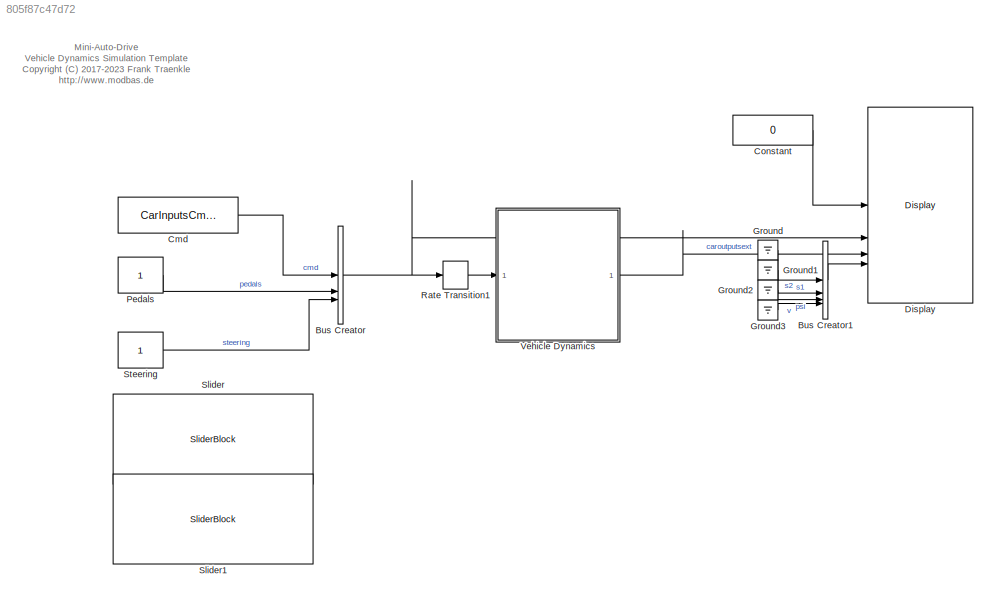
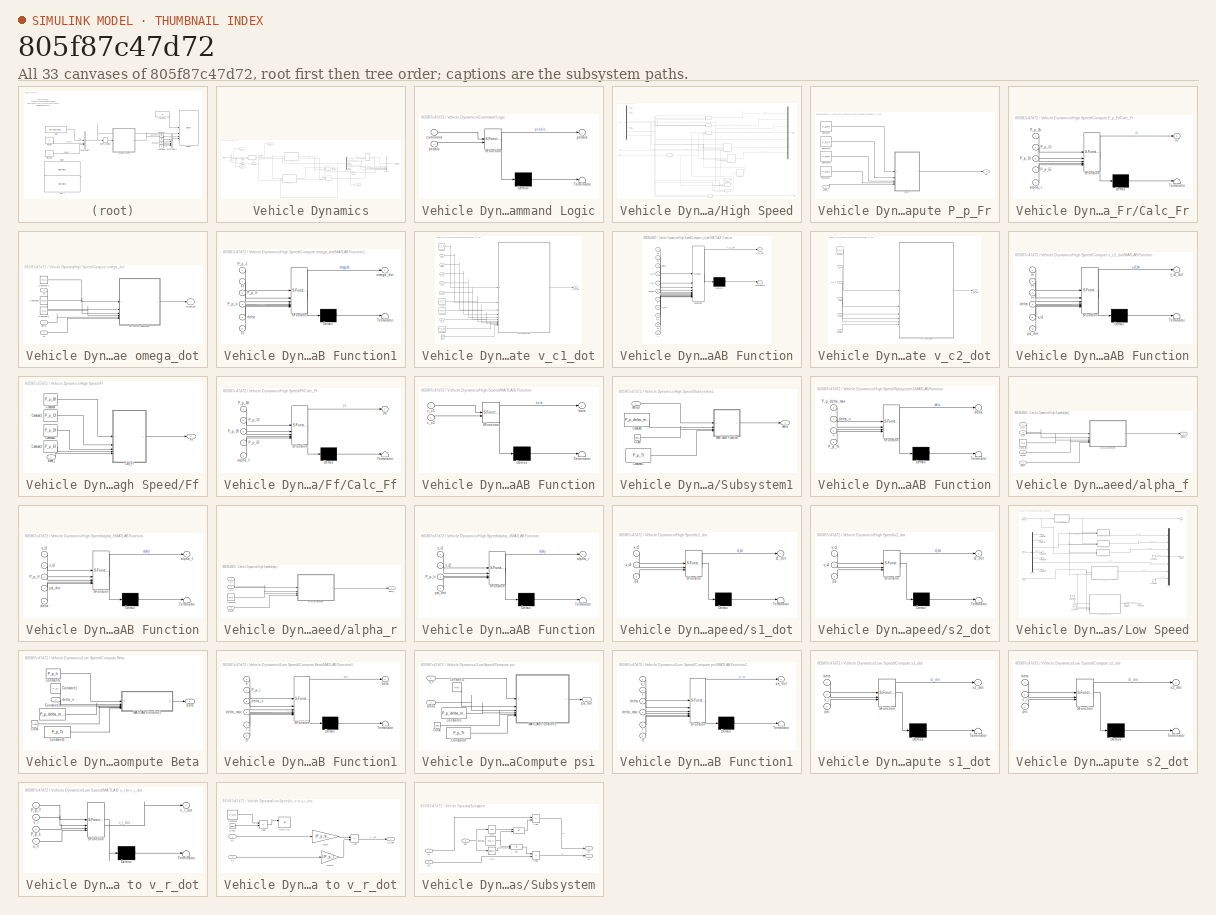
[diagram: thumbnail index - all 33 canvases of the model, root first then tree order]
MODEL slx_805f87c47d72
KIND model
CONFIG AbsTol = auto
CONFIG EnableMultiTasking = off
CONFIG FixedStep = P_sim_dt
CONFIG InitFcn = s6_data;
CONFIG MaxStep = auto
CONFIG MinStep = auto
CONFIG RelTol = 1e-3
CONFIG SampleTimeConstraint = Unconstrained
CONFIG SolverName = ode4
CONFIG StartTime = 0.0
CONFIG StopTime = inf
BLOCK [BusCreator] Bus Creator
  DisplayOption = bar
  InheritFromInputs = on
  Inputs = 3
BLOCK [BusCreator] Bus Creator1
  DisplayOption = bar
  InheritFromInputs = on
  Inputs = 4
BLOCK [Constant] Cmd
  SampleTime = -1
  Value = CarInputsCmdForward
BLOCK [Constant] Constant
  Value = 0
BLOCK [Reference] Display  REF=mad_lib_template/Display  (lib defined in slx_e896f93816e2)
  SourceBlock = mad_lib_template/Display
  SourceType = SubSystem
BLOCK [Ground] Ground
BLOCK [Ground] Ground1
BLOCK [Ground] Ground2
BLOCK [Ground] Ground3
BLOCK [Constant] Pedals
  SampleTime = -1
BLOCK [RateTransition] Rate Transition1
BLOCK [SliderBlock] Slider
  ScaleMax = 1
  ScaleMin = -1
BLOCK [SliderBlock] Slider1
  LabelPosition = Bottom
  ScaleMax = 1
  ScaleMin = -1
BLOCK [Constant] Steering
  SampleTime = -1
BLOCK [SubSystem] Vehicle Dynamics
BLOCK [BusCreator] Vehicle Dynamics/Bus Creator1
  DisplayOption = bar
  InheritFromInputs = on
  Inputs = 7
  OutDataTypeStr = Bus: CAROUTPUTSEXT
BLOCK [BusSelector] Vehicle Dynamics/Bus Selector
  OutputSignals = cmd,pedals,steering
BLOCK [SubSystem] Vehicle Dynamics/Command Logic
  ErrorFcn = Stateflow.Translate.translate
  LibrarySourceBlock = simulink/User-Defined\nFunctions/MATLAB Function
  PermitHierarchicalResolution = ExplicitOnly
  SFBlockType = MATLAB Function
  TreatAsAtomicUnit = on
BLOCK [Demux] Vehicle Dynamics/Command Logic/ Demux 
  Outputs = 1
BLOCK [S-Function] Vehicle Dynamics/Command Logic/ SFunction 
  EnableBusSupport = on
  FunctionName = sf_sfun
  PortCounts = [2 2]
  SFcnIsStateOwnerBlock = off
  SFunctionDeploymentMode = off
  Tag = Stateflow S-Function 2
BLOCK [Terminator] Vehicle Dynamics/Command Logic/ Terminator 
BLOCK [Inport] Vehicle Dynamics/Command Logic/command
BLOCK [Outport] Vehicle Dynamics/Command Logic/pedals
BLOCK [Inport] Vehicle Dynamics/Command Logic/pedals 
  Port = 2
BLOCK [Demux] Vehicle Dynamics/Demux
  Outputs = 7
BLOCK [Display] Vehicle Dynamics/Display
  Decimation = 1
BLOCK [Display] Vehicle Dynamics/Display2
  Decimation = 1
BLOCK [Display] Vehicle Dynamics/Display3
  Decimation = 1
BLOCK [SubSystem] Vehicle Dynamics/High Speed
BLOCK [SubSystem] Vehicle Dynamics/High Speed/Compute P_p_Fr
BLOCK [SubSystem] Vehicle Dynamics/High Speed/Compute P_p_Fr/Calc_Fr
  ErrorFcn = Stateflow.Translate.translate
  LibrarySourceBlock = simulink/User-Defined\nFunctions/MATLAB Function
  PermitHierarchicalResolution = ExplicitOnly
  SFBlockType = MATLAB Function
  TreatAsAtomicUnit = on
BLOCK [Demux] Vehicle Dynamics/High Speed/Compute P_p_Fr/Calc_Fr/ Demux 
  Outputs = 1
BLOCK [S-Function] Vehicle Dynamics/High Speed/Compute P_p_Fr/Calc_Fr/ SFunction 
  EnableBusSupport = on
  FunctionName = sf_sfun
  PortCounts = [5 2]
  SFcnIsStateOwnerBlock = off
  SFunctionDeploymentMode = off
  Tag = Stateflow S-Function 13
BLOCK [Terminator] Vehicle Dynamics/High Speed/Compute P_p_Fr/Calc_Fr/ Terminator 
BLOCK [Outport] Vehicle Dynamics/High Speed/Compute P_p_Fr/Calc_Fr/Fr
BLOCK [Inport] Vehicle Dynamics/High Speed/Compute P_p_Fr/Calc_Fr/P_p_Br
BLOCK [Inport] Vehicle Dynamics/High Speed/Compute P_p_Fr/Calc_Fr/P_p_Cr
  Port = 2
BLOCK [Inport] Vehicle Dynamics/High Speed/Compute P_p_Fr/Calc_Fr/P_p_Dr
  Port = 3
BLOCK [Inport] Vehicle Dynamics/High Speed/Compute P_p_Fr/Calc_Fr/P_p_Er
  Port = 4
BLOCK [Inport] Vehicle Dynamics/High Speed/Compute P_p_Fr/Calc_Fr/alpha_r
  Port = 5
BLOCK [Constant] Vehicle Dynamics/High Speed/Compute P_p_Fr/Constant
  Value = P_p_Br
BLOCK [Constant] Vehicle Dynamics/High Speed/Compute P_p_Fr/Constant1
  Value = P_p_Cr
BLOCK [Constant] Vehicle Dynamics/High Speed/Compute P_p_Fr/Constant2
  Value = P_p_Dr
BLOCK [Constant] Vehicle Dynamics/High Speed/Compute P_p_Fr/Constant3
  Value = P_p_Er
BLOCK [Outport] Vehicle Dynamics/High Speed/Compute P_p_Fr/Fr
BLOCK [Inport] Vehicle Dynamics/High Speed/Compute P_p_Fr/aplha_r
BLOCK [SubSystem] Vehicle Dynamics/High Speed/Compute omega_dot
BLOCK [Constant] Vehicle Dynamics/High Speed/Compute omega_dot/Constant
  Value = P_p_lf
BLOCK [Constant] Vehicle Dynamics/High Speed/Compute omega_dot/Constant1
  Value = P_p_J
BLOCK [Constant] Vehicle Dynamics/High Speed/Compute omega_dot/Constant2
  Value = P_p_lr
BLOCK [Inport] Vehicle Dynamics/High Speed/Compute omega_dot/Ff
BLOCK [Inport] Vehicle Dynamics/High Speed/Compute omega_dot/Fr
  Port = 2
BLOCK [SubSystem] Vehicle Dynamics/High Speed/Compute omega_dot/MATLAB Function1
  ErrorFcn = Stateflow.Translate.translate
  LibrarySourceBlock = simulink/User-Defined\nFunctions/MATLAB Function
  PermitHierarchicalResolution = ExplicitOnly
  SFBlockType = MATLAB Function
  TreatAsAtomicUnit = on
BLOCK [Demux] Vehicle Dynamics/High Speed/Compute omega_dot/MATLAB Function1/ Demux 
  Outputs = 1
BLOCK [S-Function] Vehicle Dynamics/High Speed/Compute omega_dot/MATLAB Function1/ SFunction 
  EnableBusSupport = on
  FunctionName = sf_sfun
  PortCounts = [6 2]
  SFcnIsStateOwnerBlock = off
  SFunctionDeploymentMode = off
  Tag = Stateflow S-Function 4
BLOCK [Terminator] Vehicle Dynamics/High Speed/Compute omega_dot/MATLAB Function1/ Terminator 
BLOCK [Inport] Vehicle Dynamics/High Speed/Compute omega_dot/MATLAB Function1/Ff
  Port = 2
BLOCK [Inport] Vehicle Dynamics/High Speed/Compute omega_dot/MATLAB Function1/Fr
  Port = 6
BLOCK [Inport] Vehicle Dynamics/High Speed/Compute omega_dot/MATLAB Function1/P_p_J
BLOCK [Inport] Vehicle Dynamics/High Speed/Compute omega_dot/MATLAB Function1/P_p_lf
  Port = 3
BLOCK [Inport] Vehicle Dynamics/High Speed/Compute omega_dot/MATLAB Function1/P_p_lr
  Port = 4
BLOCK [Inport] Vehicle Dynamics/High Speed/Compute omega_dot/MATLAB Function1/delta
  Port = 5
BLOCK [Outport] Vehicle Dynamics/High Speed/Compute omega_dot/MATLAB Function1/omega_dot
BLOCK [Inport] Vehicle Dynamics/High Speed/Compute omega_dot/delta
  Port = 3
BLOCK [Outport] Vehicle Dynamics/High Speed/Compute omega_dot/omega_dot
BLOCK [SubSystem] Vehicle Dynamics/High Speed/Compute v_c1_dot
BLOCK [Clock] Vehicle Dynamics/High Speed/Compute v_c1_dot/Clock
BLOCK [Constant] Vehicle Dynamics/High Speed/Compute v_c1_dot/Constant
  Value = P_p_m
BLOCK [Constant] Vehicle Dynamics/High Speed/Compute v_c1_dot/Constant1
  Value = P_p_T
BLOCK [Constant] Vehicle Dynamics/High Speed/Compute v_c1_dot/Constant2
  Value = P_p_k
BLOCK [Constant] Vehicle Dynamics/High Speed/Compute v_c1_dot/Constant3
  Value = P_p_Tt
BLOCK [Inport] Vehicle Dynamics/High Speed/Compute v_c1_dot/Ff
  Port = 6
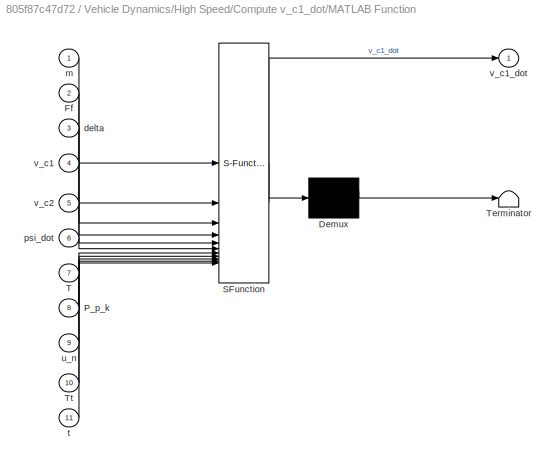
BLOCK [SubSystem] Vehicle Dynamics/High Speed/Compute v_c1_dot/MATLAB Function
  ErrorFcn = Stateflow.Translate.translate
  LibrarySourceBlock = simulink/User-Defined\nFunctions/MATLAB Function
  PermitHierarchicalResolution = ExplicitOnly
  SFBlockType = MATLAB Function
  TreatAsAtomicUnit = on
BLOCK [Demux] Vehicle Dynamics/High Speed/Compute v_c1_dot/MATLAB Function/ Demux 
  Outputs = 1
BLOCK [S-Function] Vehicle Dynamics/High Speed/Compute v_c1_dot/MATLAB Function/ SFunction 
  EnableBusSupport = on
  FunctionName = sf_sfun
  PortCounts = [11 2]
  SFcnIsStateOwnerBlock = off
  SFunctionDeploymentMode = off
  Tag = Stateflow S-Function 11
BLOCK [Terminator] Vehicle Dynamics/High Speed/Compute v_c1_dot/MATLAB Function/ Terminator 
BLOCK [Inport] Vehicle Dynamics/High Speed/Compute v_c1_dot/MATLAB Function/Ff
  Port = 2
BLOCK [Inport] Vehicle Dynamics/High Speed/Compute v_c1_dot/MATLAB Function/P_p_k
  Port = 8
BLOCK [Inport] Vehicle Dynamics/High Speed/Compute v_c1_dot/MATLAB Function/T
  Port = 7
BLOCK [Inport] Vehicle Dynamics/High Speed/Compute v_c1_dot/MATLAB Function/Tt
  Port = 10
BLOCK [Inport] Vehicle Dynamics/High Speed/Compute v_c1_dot/MATLAB Function/delta
  Port = 3
BLOCK [Inport] Vehicle Dynamics/High Speed/Compute v_c1_dot/MATLAB Function/m
BLOCK [Inport] Vehicle Dynamics/High Speed/Compute v_c1_dot/MATLAB Function/psi_dot
  Port = 6
BLOCK [Inport] Vehicle Dynamics/High Speed/Compute v_c1_dot/MATLAB Function/t
  Port = 11
BLOCK [Inport] Vehicle Dynamics/High Speed/Compute v_c1_dot/MATLAB Function/u_n
  Port = 9
BLOCK [Inport] Vehicle Dynamics/High Speed/Compute v_c1_dot/MATLAB Function/v_c1
  Port = 4
BLOCK [Outport] Vehicle Dynamics/High Speed/Compute v_c1_dot/MATLAB Function/v_c1_dot
BLOCK [Inport] Vehicle Dynamics/High Speed/Compute v_c1_dot/MATLAB Function/v_c2
  Port = 5
BLOCK [Inport] Vehicle Dynamics/High Speed/Compute v_c1_dot/delta
BLOCK [Inport] Vehicle Dynamics/High Speed/Compute v_c1_dot/psi_dot
  Port = 4
BLOCK [Inport] Vehicle Dynamics/High Speed/Compute v_c1_dot/u_n
  Port = 5
BLOCK [Inport] Vehicle Dynamics/High Speed/Compute v_c1_dot/v_c1
  Port = 2
BLOCK [Outport] Vehicle Dynamics/High Speed/Compute v_c1_dot/v_c1_dot
BLOCK [Inport] Vehicle Dynamics/High Speed/Compute v_c1_dot/v_c2
  Port = 3
BLOCK [SubSystem] Vehicle Dynamics/High Speed/Compute v_c2_dot
BLOCK [Constant] Vehicle Dynamics/High Speed/Compute v_c2_dot/Constant
  Value = P_p_m
BLOCK [Inport] Vehicle Dynamics/High Speed/Compute v_c2_dot/Ff
  Port = 4
BLOCK [SubSystem] Vehicle Dynamics/High Speed/Compute v_c2_dot/MATLAB Function
  ErrorFcn = Stateflow.Translate.translate
  LibrarySourceBlock = simulink/User-Defined\nFunctions/MATLAB Function
  PermitHierarchicalResolution = ExplicitOnly
  SFBlockType = MATLAB Function
  TreatAsAtomicUnit = on
BLOCK [Demux] Vehicle Dynamics/High Speed/Compute v_c2_dot/MATLAB Function/ Demux 
  Outputs = 1
BLOCK [S-Function] Vehicle Dynamics/High Speed/Compute v_c2_dot/MATLAB Function/ SFunction 
  EnableBusSupport = on
  FunctionName = sf_sfun
  PortCounts = [6 2]
  SFcnIsStateOwnerBlock = off
  SFunctionDeploymentMode = off
  Tag = Stateflow S-Function 12
BLOCK [Terminator] Vehicle Dynamics/High Speed/Compute v_c2_dot/MATLAB Function/ Terminator 
BLOCK [Inport] Vehicle Dynamics/High Speed/Compute v_c2_dot/MATLAB Function/Ff
  Port = 2
BLOCK [Inport] Vehicle Dynamics/High Speed/Compute v_c2_dot/MATLAB Function/Fr
  Port = 3
BLOCK [Inport] Vehicle Dynamics/High Speed/Compute v_c2_dot/MATLAB Function/delta
  Port = 4
BLOCK [Inport] Vehicle Dynamics/High Speed/Compute v_c2_dot/MATLAB Function/m
BLOCK [Inport] Vehicle Dynamics/High Speed/Compute v_c2_dot/MATLAB Function/psi_dot
  Port = 6
BLOCK [Inport] Vehicle Dynamics/High Speed/Compute v_c2_dot/MATLAB Function/v_c1
  Port = 5
BLOCK [Outport] Vehicle Dynamics/High Speed/Compute v_c2_dot/MATLAB Function/v_c2_dot
BLOCK [Inport] Vehicle Dynamics/High Speed/Compute v_c2_dot/P_p_Fr
  Port = 5
BLOCK [Inport] Vehicle Dynamics/High Speed/Compute v_c2_dot/delta
BLOCK [Inport] Vehicle Dynamics/High Speed/Compute v_c2_dot/psi_dot
  Port = 3
BLOCK [Inport] Vehicle Dynamics/High Speed/Compute v_c2_dot/v_c1
  Port = 2
BLOCK [Outport] Vehicle Dynamics/High Speed/Compute v_c2_dot/v_c2_dot
BLOCK [Demux] Vehicle Dynamics/High Speed/Demux
  Outputs = 7
BLOCK [SubSystem] Vehicle Dynamics/High Speed/Ff
BLOCK [SubSystem] Vehicle Dynamics/High Speed/Ff/Calc_Ff
  ErrorFcn = Stateflow.Translate.translate
  LibrarySourceBlock = simulink/User-Defined\nFunctions/MATLAB Function
  PermitHierarchicalResolution = ExplicitOnly
  SFBlockType = MATLAB Function
  TreatAsAtomicUnit = on
BLOCK [Demux] Vehicle Dynamics/High Speed/Ff/Calc_Ff/ Demux 
  Outputs = 1
BLOCK [S-Function] Vehicle Dynamics/High Speed/Ff/Calc_Ff/ SFunction 
  EnableBusSupport = on
  FunctionName = sf_sfun
  PortCounts = [5 2]
  SFcnIsStateOwnerBlock = off
  SFunctionDeploymentMode = off
  Tag = Stateflow S-Function 14
BLOCK [Terminator] Vehicle Dynamics/High Speed/Ff/Calc_Ff/ Terminator 
BLOCK [Outport] Vehicle Dynamics/High Speed/Ff/Calc_Ff/Ff
BLOCK [Inport] Vehicle Dynamics/High Speed/Ff/Calc_Ff/P_p_Bf
BLOCK [Inport] Vehicle Dynamics/High Speed/Ff/Calc_Ff/P_p_Cf
  Port = 2
BLOCK [Inport] Vehicle Dynamics/High Speed/Ff/Calc_Ff/P_p_Df
  Port = 3
BLOCK [Inport] Vehicle Dynamics/High Speed/Ff/Calc_Ff/P_p_Ef
  Port = 4
BLOCK [Inport] Vehicle Dynamics/High Speed/Ff/Calc_Ff/alpha_f
  Port = 5
BLOCK [Constant] Vehicle Dynamics/High Speed/Ff/Constant
  Value = P_p_Bf
BLOCK [Constant] Vehicle Dynamics/High Speed/Ff/Constant1
  Value = P_p_Cf
BLOCK [Constant] Vehicle Dynamics/High Speed/Ff/Constant2
  Value = P_p_Df
BLOCK [Constant] Vehicle Dynamics/High Speed/Ff/Constant3
  Value = P_p_Ef
BLOCK [Outport] Vehicle Dynamics/High Speed/Ff/Ff
BLOCK [Inport] Vehicle Dynamics/High Speed/Ff/alpha_f
BLOCK [SubSystem] Vehicle Dynamics/High Speed/MATLAB Function
  ErrorFcn = Stateflow.Translate.translate
  LibrarySourceBlock = simulink/User-Defined\nFunctions/MATLAB Function
  PermitHierarchicalResolution = ExplicitOnly
  SFBlockType = MATLAB Function
  TreatAsAtomicUnit = on
BLOCK [Demux] Vehicle Dynamics/High Speed/MATLAB Function/ Demux 
  Outputs = 1
BLOCK [S-Function] Vehicle Dynamics/High Speed/MATLAB Function/ SFunction 
  EnableBusSupport = on
  FunctionName = sf_sfun
  PortCounts = [2 2]
  SFcnIsStateOwnerBlock = off
  SFunctionDeploymentMode = off
  Tag = Stateflow S-Function 3
BLOCK [Terminator] Vehicle Dynamics/High Speed/MATLAB Function/ Terminator 
BLOCK [Outport] Vehicle Dynamics/High Speed/MATLAB Function/beta
BLOCK [Inport] Vehicle Dynamics/High Speed/MATLAB Function/v_c1
BLOCK [Inport] Vehicle Dynamics/High Speed/MATLAB Function/v_c2
  Port = 2
BLOCK [Mux] Vehicle Dynamics/High Speed/Mux
  DisplayOption = bar
  Inputs = 7
BLOCK [Outport] Vehicle Dynamics/High Speed/Output
BLOCK [SubSystem] Vehicle Dynamics/High Speed/Subsystem1
BLOCK [Clock] Vehicle Dynamics/High Speed/Subsystem1/Clock
BLOCK [Constant] Vehicle Dynamics/High Speed/Subsystem1/Constant
  Value = P_p_delta_max
BLOCK [Constant] Vehicle Dynamics/High Speed/Subsystem1/Constant1
  Value = P_p_Tt
BLOCK [SubSystem] Vehicle Dynamics/High Speed/Subsystem1/MATLAB Function
  ErrorFcn = Stateflow.Translate.translate
  LibrarySourceBlock = simulink/User-Defined\nFunctions/MATLAB Function
  PermitHierarchicalResolution = ExplicitOnly
  SFBlockType = MATLAB Function
  TreatAsAtomicUnit = on
BLOCK [Demux] Vehicle Dynamics/High Speed/Subsystem1/MATLAB Function/ Demux 
  Outputs = 1
BLOCK [S-Function] Vehicle Dynamics/High Speed/Subsystem1/MATLAB Function/ SFunction 
  EnableBusSupport = on
  FunctionName = sf_sfun
  PortCounts = [4 2]
  SFcnIsStateOwnerBlock = off
  SFunctionDeploymentMode = off
  Tag = Stateflow S-Function 16
BLOCK [Terminator] Vehicle Dynamics/High Speed/Subsystem1/MATLAB Function/ Terminator 
BLOCK [Inport] Vehicle Dynamics/High Speed/Subsystem1/MATLAB Function/P_p_Tt
  Port = 4
BLOCK [Inport] Vehicle Dynamics/High Speed/Subsystem1/MATLAB Function/P_p_delta_max
BLOCK [Outport] Vehicle Dynamics/High Speed/Subsystem1/MATLAB Function/delta
BLOCK [Inport] Vehicle Dynamics/High Speed/Subsystem1/MATLAB Function/delta_n
  Port = 2
BLOCK [Inport] Vehicle Dynamics/High Speed/Subsystem1/MATLAB Function/t
  Port = 3
BLOCK [Outport] Vehicle Dynamics/High Speed/Subsystem1/delta
BLOCK [Inport] Vehicle Dynamics/High Speed/Subsystem1/delta_n
BLOCK [Terminator] Vehicle Dynamics/High Speed/Terminator
BLOCK [Terminator] Vehicle Dynamics/High Speed/Terminator1
BLOCK [Terminator] Vehicle Dynamics/High Speed/Terminator2
BLOCK [SubSystem] Vehicle Dynamics/High Speed/alpha_f
BLOCK [Constant] Vehicle Dynamics/High Speed/alpha_f/Constant
  Value = P_p_lf
BLOCK [SubSystem] Vehicle Dynamics/High Speed/alpha_f/MATLAB Function
  ErrorFcn = Stateflow.Translate.translate
  LibrarySourceBlock = simulink/User-Defined\nFunctions/MATLAB Function
  PermitHierarchicalResolution = ExplicitOnly
  SFBlockType = MATLAB Function
  TreatAsAtomicUnit = on
BLOCK [Demux] Vehicle Dynamics/High Speed/alpha_f/MATLAB Function/ Demux 
  Outputs = 1
BLOCK [S-Function] Vehicle Dynamics/High Speed/alpha_f/MATLAB Function/ SFunction 
  EnableBusSupport = on
  FunctionName = sf_sfun
  PortCounts = [5 2]
  SFcnIsStateOwnerBlock = off
  SFunctionDeploymentMode = off
  Tag = Stateflow S-Function 18
BLOCK [Terminator] Vehicle Dynamics/High Speed/alpha_f/MATLAB Function/ Terminator 
BLOCK [Inport] Vehicle Dynamics/High Speed/alpha_f/MATLAB Function/P_p_lf
  Port = 3
BLOCK [Outport] Vehicle Dynamics/High Speed/alpha_f/MATLAB Function/alpha_f
BLOCK [Inport] Vehicle Dynamics/High Speed/alpha_f/MATLAB Function/delta
  Port = 5
BLOCK [Inport] Vehicle Dynamics/High Speed/alpha_f/MATLAB Function/psi_dot
  Port = 4
BLOCK [Inport] Vehicle Dynamics/High Speed/alpha_f/MATLAB Function/v_c1
BLOCK [Inport] Vehicle Dynamics/High Speed/alpha_f/MATLAB Function/v_c2
  Port = 2
BLOCK [Outport] Vehicle Dynamics/High Speed/alpha_f/alpha_f
BLOCK [Inport] Vehicle Dynamics/High Speed/alpha_f/delta
  Port = 4
BLOCK [Inport] Vehicle Dynamics/High Speed/alpha_f/psi_dot
  Port = 3
BLOCK [Inport] Vehicle Dynamics/High Speed/alpha_f/v_c1
BLOCK [Inport] Vehicle Dynamics/High Speed/alpha_f/v_c2
  Port = 2
BLOCK [SubSystem] Vehicle Dynamics/High Speed/alpha_r
BLOCK [Constant] Vehicle Dynamics/High Speed/alpha_r/Constant
  Value = P_p_lr
BLOCK [SubSystem] Vehicle Dynamics/High Speed/alpha_r/MATLAB Function
  ErrorFcn = Stateflow.Translate.translate
  LibrarySourceBlock = simulink/User-Defined\nFunctions/MATLAB Function
  PermitHierarchicalResolution = ExplicitOnly
  SFBlockType = MATLAB Function
  TreatAsAtomicUnit = on
BLOCK [Demux] Vehicle Dynamics/High Speed/alpha_r/MATLAB Function/ Demux 
  Outputs = 1
BLOCK [S-Function] Vehicle Dynamics/High Speed/alpha_r/MATLAB Function/ SFunction 
  EnableBusSupport = on
  FunctionName = sf_sfun
  PortCounts = [4 2]
  SFcnIsStateOwnerBlock = off
  SFunctionDeploymentMode = off
  Tag = Stateflow S-Function 15
BLOCK [Terminator] Vehicle Dynamics/High Speed/alpha_r/MATLAB Function/ Terminator 
BLOCK [Inport] Vehicle Dynamics/High Speed/alpha_r/MATLAB Function/P_p_lr
  Port = 3
BLOCK [Outport] Vehicle Dynamics/High Speed/alpha_r/MATLAB Function/alpha_r
BLOCK [Inport] Vehicle Dynamics/High Speed/alpha_r/MATLAB Function/psi_dot
  Port = 4
BLOCK [Inport] Vehicle Dynamics/High Speed/alpha_r/MATLAB Function/v_c1
BLOCK [Inport] Vehicle Dynamics/High Speed/alpha_r/MATLAB Function/v_c2
  Port = 2
BLOCK [Outport] Vehicle Dynamics/High Speed/alpha_r/alpha_r
BLOCK [Inport] Vehicle Dynamics/High Speed/alpha_r/psi_dot
  Port = 3
BLOCK [Inport] Vehicle Dynamics/High Speed/alpha_r/v_c1
BLOCK [Inport] Vehicle Dynamics/High Speed/alpha_r/v_c2
  Port = 2
BLOCK [Outport] Vehicle Dynamics/High Speed/beta
  Port = 2
BLOCK [Inport] Vehicle Dynamics/High Speed/delta_n
  Port = 3
BLOCK [SubSystem] Vehicle Dynamics/High Speed/s1_dot
  ErrorFcn = Stateflow.Translate.translate
  LibrarySourceBlock = simulink/User-Defined\nFunctions/MATLAB Function
  PermitHierarchicalResolution = ExplicitOnly
  SFBlockType = MATLAB Function
  TreatAsAtomicUnit = on
BLOCK [Demux] Vehicle Dynamics/High Speed/s1_dot/ Demux 
  Outputs = 1
BLOCK [S-Function] Vehicle Dynamics/High Speed/s1_dot/ SFunction 
  EnableBusSupport = on
  FunctionName = sf_sfun
  PortCounts = [3 2]
  SFcnIsStateOwnerBlock = off
  SFunctionDeploymentMode = off
  Tag = Stateflow S-Function 7
BLOCK [Terminator] Vehicle Dynamics/High Speed/s1_dot/ Terminator 
BLOCK [Inport] Vehicle Dynamics/High Speed/s1_dot/psi
  Port = 3
BLOCK [Outport] Vehicle Dynamics/High Speed/s1_dot/s1_dot
BLOCK [Inport] Vehicle Dynamics/High Speed/s1_dot/v_c1
BLOCK [Inport] Vehicle Dynamics/High Speed/s1_dot/v_c2
  Port = 2
BLOCK [SubSystem] Vehicle Dynamics/High Speed/s2_dot
  ErrorFcn = Stateflow.Translate.translate
  LibrarySourceBlock = simulink/User-Defined\nFunctions/MATLAB Function
  PermitHierarchicalResolution = ExplicitOnly
  SFBlockType = MATLAB Function
  TreatAsAtomicUnit = on
BLOCK [Demux] Vehicle Dynamics/High Speed/s2_dot/ Demux 
  Outputs = 1
BLOCK [S-Function] Vehicle Dynamics/High Speed/s2_dot/ SFunction 
  EnableBusSupport = on
  FunctionName = sf_sfun
  PortCounts = [3 2]
  SFcnIsStateOwnerBlock = off
  SFunctionDeploymentMode = off
  Tag = Stateflow S-Function 6
BLOCK [Terminator] Vehicle Dynamics/High Speed/s2_dot/ Terminator 
BLOCK [Inport] Vehicle Dynamics/High Speed/s2_dot/psi
  Port = 3
BLOCK [Outport] Vehicle Dynamics/High Speed/s2_dot/s2_dot
BLOCK [Inport] Vehicle Dynamics/High Speed/s2_dot/v_c1
BLOCK [Inport] Vehicle Dynamics/High Speed/s2_dot/v_c2
  Port = 2
BLOCK [Inport] Vehicle Dynamics/High Speed/u_n
BLOCK [Inport] Vehicle Dynamics/High Speed/y
  Port = 2
BLOCK [Integrator] Vehicle Dynamics/Integrator2
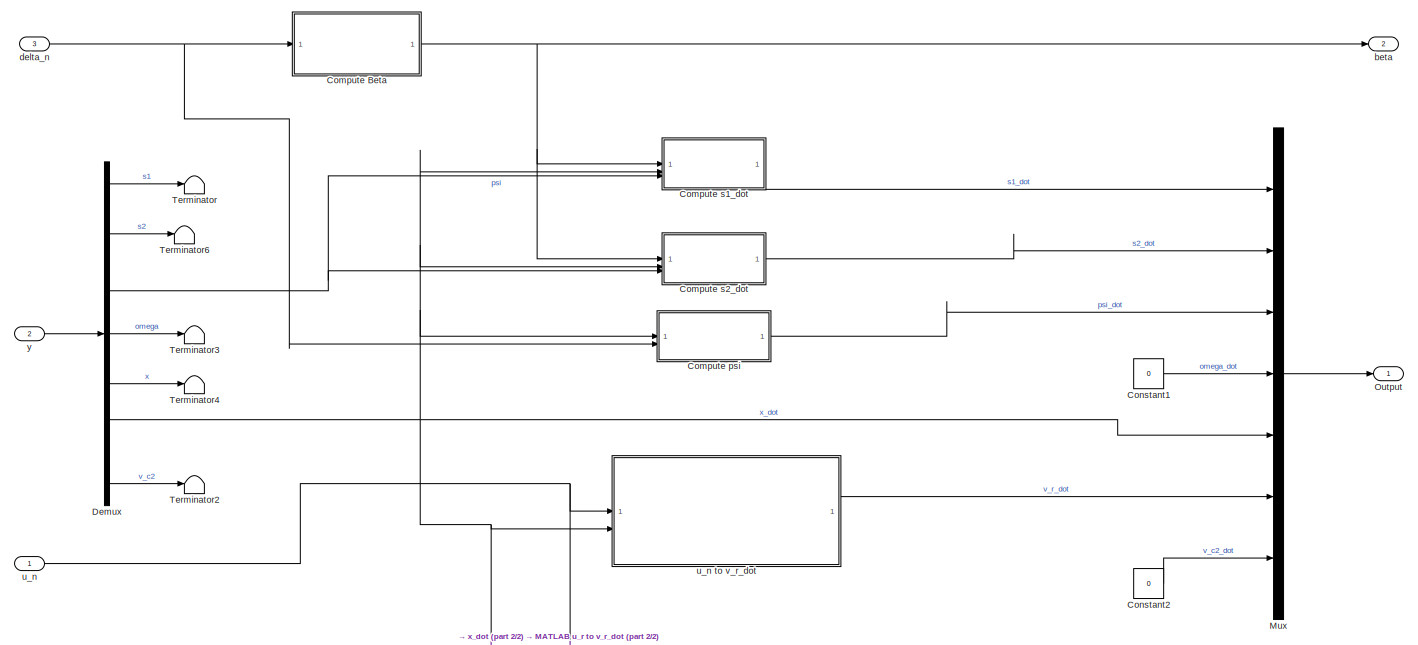
[diagram: Vehicle Dynamics/Low Speed - part 1/2, full width, middle band]
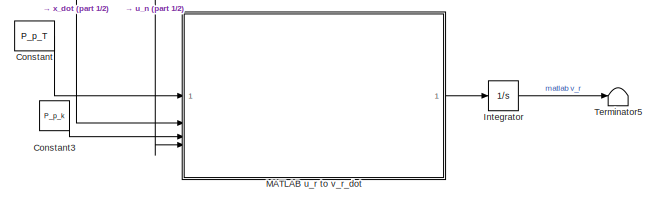
[diagram: Vehicle Dynamics/Low Speed - part 2/2, bottom center region]
BLOCK [SubSystem] Vehicle Dynamics/Low Speed
BLOCK [SubSystem] Vehicle Dynamics/Low Speed/Compute Beta
BLOCK [Clock] Vehicle Dynamics/Low Speed/Compute Beta/Clock
BLOCK [Constant] Vehicle Dynamics/Low Speed/Compute Beta/Constant1
  Value = P_p_l
BLOCK [Constant] Vehicle Dynamics/Low Speed/Compute Beta/Constant2
  Value = P_p_lr
BLOCK [Constant] Vehicle Dynamics/Low Speed/Compute Beta/Constant3
  Value = P_p_delta_max
BLOCK [Constant] Vehicle Dynamics/Low Speed/Compute Beta/Constant4
  Value = P_p_Tt
BLOCK [SubSystem] Vehicle Dynamics/Low Speed/Compute Beta/MATLAB Function1
  ErrorFcn = Stateflow.Translate.translate
  LibrarySourceBlock = simulink/User-Defined\nFunctions/MATLAB Function
  PermitHierarchicalResolution = ExplicitOnly
  SFBlockType = MATLAB Function
  TreatAsAtomicUnit = on
BLOCK [Demux] Vehicle Dynamics/Low Speed/Compute Beta/MATLAB Function1/ Demux 
  Outputs = 1
BLOCK [S-Function] Vehicle Dynamics/Low Speed/Compute Beta/MATLAB Function1/ SFunction 
  EnableBusSupport = on
  FunctionName = sf_sfun
  PortCounts = [6 2]
  SFcnIsStateOwnerBlock = off
  SFunctionDeploymentMode = off
  Tag = Stateflow S-Function 5
BLOCK [Terminator] Vehicle Dynamics/Low Speed/Compute Beta/MATLAB Function1/ Terminator 
BLOCK [Inport] Vehicle Dynamics/Low Speed/Compute Beta/MATLAB Function1/P_p_l
  Port = 2
BLOCK [Inport] Vehicle Dynamics/Low Speed/Compute Beta/MATLAB Function1/Tt
  Port = 6
BLOCK [Inport] Vehicle Dynamics/Low Speed/Compute Beta/MATLAB Function1/a
BLOCK [Outport] Vehicle Dynamics/Low Speed/Compute Beta/MATLAB Function1/beta
BLOCK [Inport] Vehicle Dynamics/Low Speed/Compute Beta/MATLAB Function1/delta_max
  Port = 4
BLOCK [Inport] Vehicle Dynamics/Low Speed/Compute Beta/MATLAB Function1/delta_n
  Port = 3
BLOCK [Inport] Vehicle Dynamics/Low Speed/Compute Beta/MATLAB Function1/t
  Port = 5
BLOCK [Outport] Vehicle Dynamics/Low Speed/Compute Beta/beta
BLOCK [Inport] Vehicle Dynamics/Low Speed/Compute Beta/delta_n
BLOCK [SubSystem] Vehicle Dynamics/Low Speed/Compute psi
BLOCK [Clock] Vehicle Dynamics/Low Speed/Compute psi/Clock
BLOCK [Constant] Vehicle Dynamics/Low Speed/Compute psi/Constant1
  Value = P_p_l
BLOCK [Constant] Vehicle Dynamics/Low Speed/Compute psi/Constant3
  Value = P_p_delta_max
BLOCK [Constant] Vehicle Dynamics/Low Speed/Compute psi/Constant4
  Value = P_p_Tt
BLOCK [SubSystem] Vehicle Dynamics/Low Speed/Compute psi/MATLAB Function1
  ErrorFcn = Stateflow.Translate.translate
  LibrarySourceBlock = simulink/User-Defined\nFunctions/MATLAB Function
  PermitHierarchicalResolution = ExplicitOnly
  SFBlockType = MATLAB Function
  TreatAsAtomicUnit = on
BLOCK [Demux] Vehicle Dynamics/Low Speed/Compute psi/MATLAB Function1/ Demux 
  Outputs = 1
BLOCK [S-Function] Vehicle Dynamics/Low Speed/Compute psi/MATLAB Function1/ SFunction 
  EnableBusSupport = on
  FunctionName = sf_sfun
  PortCounts = [6 2]
  SFcnIsStateOwnerBlock = off
  SFunctionDeploymentMode = off
  Tag = Stateflow S-Function 10
BLOCK [Terminator] Vehicle Dynamics/Low Speed/Compute psi/MATLAB Function1/ Terminator 
BLOCK [Inport] Vehicle Dynamics/Low Speed/Compute psi/MATLAB Function1/Tt
  Port = 6
BLOCK [Inport] Vehicle Dynamics/Low Speed/Compute psi/MATLAB Function1/delta
  Port = 3
BLOCK [Inport] Vehicle Dynamics/Low Speed/Compute psi/MATLAB Function1/delta_max
  Port = 4
BLOCK [Inport] Vehicle Dynamics/Low Speed/Compute psi/MATLAB Function1/l
  Port = 2
BLOCK [Outport] Vehicle Dynamics/Low Speed/Compute psi/MATLAB Function1/psi_dot
BLOCK [Inport] Vehicle Dynamics/Low Speed/Compute psi/MATLAB Function1/t
  Port = 5
BLOCK [Inport] Vehicle Dynamics/Low Speed/Compute psi/MATLAB Function1/v_r
BLOCK [Inport] Vehicle Dynamics/Low Speed/Compute psi/delta
  Port = 2
BLOCK [Outport] Vehicle Dynamics/Low Speed/Compute psi/psi_dot
BLOCK [Inport] Vehicle Dynamics/Low Speed/Compute psi/v_r
BLOCK [SubSystem] Vehicle Dynamics/Low Speed/Compute s1_dot
  ErrorFcn = Stateflow.Translate.translate
  LibrarySourceBlock = simulink/User-Defined\nFunctions/MATLAB Function
  PermitHierarchicalResolution = ExplicitOnly
  SFBlockType = MATLAB Function
  TreatAsAtomicUnit = on
BLOCK [Demux] Vehicle Dynamics/Low Speed/Compute s1_dot/ Demux 
  Outputs = 1
BLOCK [S-Function] Vehicle Dynamics/Low Speed/Compute s1_dot/ SFunction 
  EnableBusSupport = on
  FunctionName = sf_sfun
  PortCounts = [3 2]
  SFcnIsStateOwnerBlock = off
  SFunctionDeploymentMode = off
  Tag = Stateflow S-Function 9
BLOCK [Terminator] Vehicle Dynamics/Low Speed/Compute s1_dot/ Terminator 
BLOCK [Inport] Vehicle Dynamics/Low Speed/Compute s1_dot/beta
BLOCK [Inport] Vehicle Dynamics/Low Speed/Compute s1_dot/psi
  Port = 3
BLOCK [Outport] Vehicle Dynamics/Low Speed/Compute s1_dot/s1_dot
BLOCK [Inport] Vehicle Dynamics/Low Speed/Compute s1_dot/v_r
  Port = 2
BLOCK [SubSystem] Vehicle Dynamics/Low Speed/Compute s2_dot
  ErrorFcn = Stateflow.Translate.translate
  LibrarySourceBlock = simulink/User-Defined\nFunctions/MATLAB Function
  PermitHierarchicalResolution = ExplicitOnly
  SFBlockType = MATLAB Function
  TreatAsAtomicUnit = on
BLOCK [Demux] Vehicle Dynamics/Low Speed/Compute s2_dot/ Demux 
  Outputs = 1
BLOCK [S-Function] Vehicle Dynamics/Low Speed/Compute s2_dot/ SFunction 
  EnableBusSupport = on
  FunctionName = sf_sfun
  PortCounts = [3 2]
  SFcnIsStateOwnerBlock = off
  SFunctionDeploymentMode = off
  Tag = Stateflow S-Function 8
BLOCK [Terminator] Vehicle Dynamics/Low Speed/Compute s2_dot/ Terminator 
BLOCK [Inport] Vehicle Dynamics/Low Speed/Compute s2_dot/beta
BLOCK [Inport] Vehicle Dynamics/Low Speed/Compute s2_dot/psi
  Port = 3
BLOCK [Outport] Vehicle Dynamics/Low Speed/Compute s2_dot/s2_dot
BLOCK [Inport] Vehicle Dynamics/Low Speed/Compute s2_dot/v_r
  Port = 2
BLOCK [Constant] Vehicle Dynamics/Low Speed/Constant
  Value = P_p_T
BLOCK [Constant] Vehicle Dynamics/Low Speed/Constant1
  Value = 0
BLOCK [Constant] Vehicle Dynamics/Low Speed/Constant2
  Value = 0
BLOCK [Constant] Vehicle Dynamics/Low Speed/Constant3
  Value = P_p_k
BLOCK [Demux] Vehicle Dynamics/Low Speed/Demux
  Outputs = 7
BLOCK [Integrator] Vehicle Dynamics/Low Speed/Integrator
BLOCK [SubSystem] Vehicle Dynamics/Low Speed/MATLAB u_r to v_r_dot
  ErrorFcn = Stateflow.Translate.translate
  LibrarySourceBlock = simulink/User-Defined\nFunctions/MATLAB Function
  PermitHierarchicalResolution = ExplicitOnly
  SFBlockType = MATLAB Function
  TreatAsAtomicUnit = on
BLOCK [Demux] Vehicle Dynamics/Low Speed/MATLAB u_r to v_r_dot/ Demux 
  Outputs = 1
BLOCK [S-Function] Vehicle Dynamics/Low Speed/MATLAB u_r to v_r_dot/ SFunction 
  EnableBusSupport = on
  FunctionName = sf_sfun
  PortCounts = [4 2]
  SFcnIsStateOwnerBlock = off
  SFunctionDeploymentMode = off
  Tag = Stateflow S-Function 1
BLOCK [Terminator] Vehicle Dynamics/Low Speed/MATLAB u_r to v_r_dot/ Terminator 
BLOCK [Inport] Vehicle Dynamics/Low Speed/MATLAB u_r to v_r_dot/P_p_T
BLOCK [Inport] Vehicle Dynamics/Low Speed/MATLAB u_r to v_r_dot/P_p_k
  Port = 3
BLOCK [Inport] Vehicle Dynamics/Low Speed/MATLAB u_r to v_r_dot/u_n
  Port = 4
BLOCK [Inport] Vehicle Dynamics/Low Speed/MATLAB u_r to v_r_dot/v_r
  Port = 2
BLOCK [Outport] Vehicle Dynamics/Low Speed/MATLAB u_r to v_r_dot/v_r_dot
BLOCK [Mux] Vehicle Dynamics/Low Speed/Mux
  DisplayOption = bar
  Inputs = 7
BLOCK [Outport] Vehicle Dynamics/Low Speed/Output
BLOCK [Terminator] Vehicle Dynamics/Low Speed/Terminator
BLOCK [Terminator] Vehicle Dynamics/Low Speed/Terminator2
BLOCK [Terminator] Vehicle Dynamics/Low Speed/Terminator3
BLOCK [Terminator] Vehicle Dynamics/Low Speed/Terminator4
BLOCK [Terminator] Vehicle Dynamics/Low Speed/Terminator5
BLOCK [Terminator] Vehicle Dynamics/Low Speed/Terminator6
BLOCK [Outport] Vehicle Dynamics/Low Speed/beta
  Port = 2
BLOCK [Inport] Vehicle Dynamics/Low Speed/delta_n
  Port = 3
BLOCK [Inport] Vehicle Dynamics/Low Speed/u_n
BLOCK [SubSystem] Vehicle Dynamics/Low Speed/u_n to v_r_dot
BLOCK [Sum] Vehicle Dynamics/Low Speed/u_n to v_r_dot/Add
  IconShape = rectangular
  Inputs = +-
BLOCK [Sum] Vehicle Dynamics/Low Speed/u_n to v_r_dot/Add1
  Commented = on
  IconShape = rectangular
  Inputs = -+
BLOCK [Clock] Vehicle Dynamics/Low Speed/u_n to v_r_dot/Clock
  Commented = on
BLOCK [Constant] Vehicle Dynamics/Low Speed/u_n to v_r_dot/Constant
  Commented = on
  Value = P_p_Tt
BLOCK [Gain] Vehicle Dynamics/Low Speed/u_n to v_r_dot/Gain1
  Gain = (P_p_k/P_p_T)
BLOCK [Gain] Vehicle Dynamics/Low Speed/u_n to v_r_dot/Gain2
  Gain = 1/P_p_T
BLOCK [Inport] Vehicle Dynamics/Low Speed/u_n to v_r_dot/u_n
BLOCK [Product] Vehicle Dynamics/Low Speed/u_n to v_r_dot/u_n*(t-T_t)
  Commented = on
BLOCK [Inport] Vehicle Dynamics/Low Speed/u_n to v_r_dot/v_r
  Port = 2
BLOCK [Outport] Vehicle Dynamics/Low Speed/u_n to v_r_dot/v_r_dot
BLOCK [Inport] Vehicle Dynamics/Low Speed/y
  Port = 2
BLOCK [Saturate] Vehicle Dynamics/Saturation
  LowerLimit = -1
  UpperLimit = 1
BLOCK [Saturate] Vehicle Dynamics/Saturation1
  LowerLimit = -1
  UpperLimit = 1
BLOCK [SubSystem] Vehicle Dynamics/Subsystem
BLOCK [Product] Vehicle Dynamics/Subsystem/ 
BLOCK [Sum] Vehicle Dynamics/Subsystem/Add
  IconShape = rectangular
  Inputs = +-
BLOCK [Sum] Vehicle Dynamics/Subsystem/Add1
  IconShape = rectangular
  Inputs = -+
BLOCK [Constant] Vehicle Dynamics/Subsystem/Constant
  Value = P_p_lr
BLOCK [Trigonometry] Vehicle Dynamics/Subsystem/Cos
  Operator = cos
BLOCK [Trigonometry] Vehicle Dynamics/Subsystem/Sin
BLOCK [Product] Vehicle Dynamics/Subsystem/las
BLOCK [Inport] Vehicle Dynamics/Subsystem/psi
  Port = 3
BLOCK [Inport] Vehicle Dynamics/Subsystem/s1
BLOCK [Inport] Vehicle Dynamics/Subsystem/s2
  Port = 2
BLOCK [Outport] Vehicle Dynamics/Subsystem/s3
BLOCK [Outport] Vehicle Dynamics/Subsystem/s4
  Port = 2
BLOCK [Switch] Vehicle Dynamics/Switch
  Criteria = u2 > Threshold
  InputSameDT = off
  SaturateOnIntegerOverflow = off
  Threshold = 0.2
BLOCK [Switch] Vehicle Dynamics/Switch1
  Criteria = u2 > Threshold
  InputSameDT = off
  SaturateOnIntegerOverflow = off
  Threshold = 0.2
BLOCK [Terminator] Vehicle Dynamics/Terminator
BLOCK [Terminator] Vehicle Dynamics/Terminator1
BLOCK [Constant] Vehicle Dynamics/Time
  Value = uint8(0)
BLOCK [TransportDelay] Vehicle Dynamics/Transport Delay
  DelayTime = P_p_Tt
BLOCK [TransportDelay] Vehicle Dynamics/Transport Delay1
  DelayTime = P_p_Tt
BLOCK [Inport] Vehicle Dynamics/carinputs
BLOCK [Outport] Vehicle Dynamics/caroutputsext
  VectorParamsAs1DForOutWhenUnconnected = off
BLOCK [Display] Vehicle Dynamics/v in m//s
  Decimation = 1
ANNOTATION (root): Mini-Auto-Drive Vehicle Dynamics Simulation Template <copyright redacted>
LINE Bus Creator1:1 -> Display:4
NET Bus Creator:1 -> Display:2, Rate Transition1:1
LINE Cmd:1 -> Bus Creator:1
LINE Constant:1 -> Display:1
LINE Ground1:1 -> Bus Creator1:2
LINE Ground2:1 -> Bus Creator1:3
LINE Ground3:1 -> Bus Creator1:4
LINE Ground:1 -> Bus Creator1:1
LINE Pedals:1 -> Bus Creator:2
LINE Rate Transition1:1 -> Vehicle Dynamics:1
LINE Steering:1 -> Bus Creator:3
LINE Vehicle Dynamics/Bus Creator1:1 -> Vehicle Dynamics/caroutputsext:1
NET Vehicle Dynamics/Bus Selector:1 -> Vehicle Dynamics/Command Logic:1, Vehicle Dynamics/Display:1
LINE Vehicle Dynamics/Bus Selector:2 -> Vehicle Dynamics/Saturation:1
NET Vehicle Dynamics/Bus Selector:3 -> Vehicle Dynamics/Display2:1, Vehicle Dynamics/Saturation1:1
LINE Vehicle Dynamics/Command Logic:1 -> Vehicle Dynamics/Transport Delay:1
LINE Vehicle Dynamics/Demux:1 -> Vehicle Dynamics/Subsystem:1
LINE Vehicle Dynamics/Demux:2 -> Vehicle Dynamics/Subsystem:2
NET Vehicle Dynamics/Demux:3 -> Vehicle Dynamics/Bus Creator1:3, Vehicle Dynamics/Subsystem:3
LINE Vehicle Dynamics/Demux:4 -> Vehicle Dynamics/Terminator:1
LINE Vehicle Dynamics/Demux:5 -> Vehicle Dynamics/Bus Creator1:6
NET Vehicle Dynamics/Demux:6 -> Vehicle Dynamics/Bus Creator1:5, Vehicle Dynamics/Switch1:2, Vehicle Dynamics/Switch:2, Vehicle Dynamics/v in m//s:1
LINE Vehicle Dynamics/Demux:7 -> Vehicle Dynamics/Terminator1:1
LINE Vehicle Dynamics/High Speed/Compute P_p_Fr/Calc_Fr:1 -> Vehicle Dynamics/High Speed/Compute P_p_Fr/Fr:1
LINE Vehicle Dynamics/High Speed/Compute P_p_Fr/Constant1:1 -> Vehicle Dynamics/High Speed/Compute P_p_Fr/Calc_Fr:2
LINE Vehicle Dynamics/High Speed/Compute P_p_Fr/Constant2:1 -> Vehicle Dynamics/High Speed/Compute P_p_Fr/Calc_Fr:3
LINE Vehicle Dynamics/High Speed/Compute P_p_Fr/Constant3:1 -> Vehicle Dynamics/High Speed/Compute P_p_Fr/Calc_Fr:4
LINE Vehicle Dynamics/High Speed/Compute P_p_Fr/Constant:1 -> Vehicle Dynamics/High Speed/Compute P_p_Fr/Calc_Fr:1
LINE Vehicle Dynamics/High Speed/Compute P_p_Fr/aplha_r:1 -> Vehicle Dynamics/High Speed/Compute P_p_Fr/Calc_Fr:5
NET Vehicle Dynamics/High Speed/Compute P_p_Fr:1 -> Vehicle Dynamics/High Speed/Compute omega_dot:2, Vehicle Dynamics/High Speed/Compute v_c2_dot:5
LINE Vehicle Dynamics/High Speed/Compute omega_dot/Constant1:1 -> Vehicle Dynamics/High Speed/Compute omega_dot/MATLAB Function1:1
LINE Vehicle Dynamics/High Speed/Compute omega_dot/Constant2:1 -> Vehicle Dynamics/High Speed/Compute omega_dot/MATLAB Function1:4
LINE Vehicle Dynamics/High Speed/Compute omega_dot/Constant:1 -> Vehicle Dynamics/High Speed/Compute omega_dot/MATLAB Function1:3
LINE Vehicle Dynamics/High Speed/Compute omega_dot/Ff:1 -> Vehicle Dynamics/High Speed/Compute omega_dot/MATLAB Function1:2
LINE Vehicle Dynamics/High Speed/Compute omega_dot/Fr:1 -> Vehicle Dynamics/High Speed/Compute omega_dot/MATLAB Function1:6
LINE Vehicle Dynamics/High Speed/Compute omega_dot/MATLAB Function1:1 -> Vehicle Dynamics/High Speed/Compute omega_dot/omega_dot:1
LINE Vehicle Dynamics/High Speed/Compute omega_dot/delta:1 -> Vehicle Dynamics/High Speed/Compute omega_dot/MATLAB Function1:5
LINE Vehicle Dynamics/High Speed/Compute omega_dot:1 -> Vehicle Dynamics/High Speed/Mux:4
LINE Vehicle Dynamics/High Speed/Compute v_c1_dot/Clock:1 -> Vehicle Dynamics/High Speed/Compute v_c1_dot/MATLAB Function:11
LINE Vehicle Dynamics/High Speed/Compute v_c1_dot/Constant1:1 -> Vehicle Dynamics/High Speed/Compute v_c1_dot/MATLAB Function:7
LINE Vehicle Dynamics/High Speed/Compute v_c1_dot/Constant2:1 -> Vehicle Dynamics/High Speed/Compute v_c1_dot/MATLAB Function:8
LINE Vehicle Dynamics/High Speed/Compute v_c1_dot/Constant3:1 -> Vehicle Dynamics/High Speed/Compute v_c1_dot/MATLAB Function:10
LINE Vehicle Dynamics/High Speed/Compute v_c1_dot/Constant:1 -> Vehicle Dynamics/High Speed/Compute v_c1_dot/MATLAB Function:1
LINE Vehicle Dynamics/High Speed/Compute v_c1_dot/Ff:1 -> Vehicle Dynamics/High Speed/Compute v_c1_dot/MATLAB Function:2
LINE Vehicle Dynamics/High Speed/Compute v_c1_dot/MATLAB Function:1 -> Vehicle Dynamics/High Speed/Compute v_c1_dot/v_c1_dot:1
LINE Vehicle Dynamics/High Speed/Compute v_c1_dot/delta:1 -> Vehicle Dynamics/High Speed/Compute v_c1_dot/MATLAB Function:3
LINE Vehicle Dynamics/High Speed/Compute v_c1_dot/psi_dot:1 -> Vehicle Dynamics/High Speed/Compute v_c1_dot/MATLAB Function:6
LINE Vehicle Dynamics/High Speed/Compute v_c1_dot/u_n:1 -> Vehicle Dynamics/High Speed/Compute v_c1_dot/MATLAB Function:9
LINE Vehicle Dynamics/High Speed/Compute v_c1_dot/v_c1:1 -> Vehicle Dynamics/High Speed/Compute v_c1_dot/MATLAB Function:4
LINE Vehicle Dynamics/High Speed/Compute v_c1_dot/v_c2:1 -> Vehicle Dynamics/High Speed/Compute v_c1_dot/MATLAB Function:5
LINE Vehicle Dynamics/High Speed/Compute v_c1_dot:1 -> Vehicle Dynamics/High Speed/Mux:6
LINE Vehicle Dynamics/High Speed/Compute v_c2_dot/Constant:1 -> Vehicle Dynamics/High Speed/Compute v_c2_dot/MATLAB Function:1
LINE Vehicle Dynamics/High Speed/Compute v_c2_dot/Ff:1 -> Vehicle Dynamics/High Speed/Compute v_c2_dot/MATLAB Function:2
LINE Vehicle Dynamics/High Speed/Compute v_c2_dot/MATLAB Function:1 -> Vehicle Dynamics/High Speed/Compute v_c2_dot/v_c2_dot:1
LINE Vehicle Dynamics/High Speed/Compute v_c2_dot/P_p_Fr:1 -> Vehicle Dynamics/High Speed/Compute v_c2_dot/MATLAB Function:3
LINE Vehicle Dynamics/High Speed/Compute v_c2_dot/delta:1 -> Vehicle Dynamics/High Speed/Compute v_c2_dot/MATLAB Function:4
LINE Vehicle Dynamics/High Speed/Compute v_c2_dot/psi_dot:1 -> Vehicle Dynamics/High Speed/Compute v_c2_dot/MATLAB Function:6
LINE Vehicle Dynamics/High Speed/Compute v_c2_dot/v_c1:1 -> Vehicle Dynamics/High Speed/Compute v_c2_dot/MATLAB Function:5
LINE Vehicle Dynamics/High Speed/Compute v_c2_dot:1 -> Vehicle Dynamics/High Speed/Mux:7
LINE Vehicle Dynamics/High Speed/Demux:1 -> Vehicle Dynamics/High Speed/Terminator:1
LINE Vehicle Dynamics/High Speed/Demux:2 -> Vehicle Dynamics/High Speed/Terminator1:1
NET Vehicle Dynamics/High Speed/Demux:3 -> Vehicle Dynamics/High Speed/s1_dot:3, Vehicle Dynamics/High Speed/s2_dot:3
NET Vehicle Dynamics/High Speed/Demux:4 -> Vehicle Dynamics/High Speed/Compute v_c1_dot:4, Vehicle Dynamics/High Speed/Compute v_c2_dot:3, Vehicle Dynamics/High Speed/Mux:3, Vehicle Dynamics/High Speed/alpha_f:3, Vehicle Dynamics/High Speed/alpha_r:3
LINE Vehicle Dynamics/High Speed/Demux:5 -> Vehicle Dynamics/High Speed/Terminator2:1
NET Vehicle Dynamics/High Speed/Demux:6 -> Vehicle Dynamics/High Speed/Compute v_c1_dot:2, Vehicle Dynamics/High Speed/Compute v_c2_dot:2, Vehicle Dynamics/High Speed/MATLAB Function:1, Vehicle Dynamics/High Speed/Mux:5, Vehicle Dynamics/High Speed/alpha_f:1, Vehicle Dynamics/High Speed/alpha_r:1, Vehicle Dynamics/High Speed/s1_dot:1, Vehicle Dynamics/High Speed/s2_dot:1
NET Vehicle Dynamics/High Speed/Demux:7 -> Vehicle Dynamics/High Speed/Compute v_c1_dot:3, Vehicle Dynamics/High Speed/MATLAB Function:2, Vehicle Dynamics/High Speed/alpha_f:2, Vehicle Dynamics/High Speed/alpha_r:2, Vehicle Dynamics/High Speed/s1_dot:2, Vehicle Dynamics/High Speed/s2_dot:2
LINE Vehicle Dynamics/High Speed/Ff/Calc_Ff:1 -> Vehicle Dynamics/High Speed/Ff/Ff:1
LINE Vehicle Dynamics/High Speed/Ff/Constant1:1 -> Vehicle Dynamics/High Speed/Ff/Calc_Ff:2
LINE Vehicle Dynamics/High Speed/Ff/Constant2:1 -> Vehicle Dynamics/High Speed/Ff/Calc_Ff:3
LINE Vehicle Dynamics/High Speed/Ff/Constant3:1 -> Vehicle Dynamics/High Speed/Ff/Calc_Ff:4
LINE Vehicle Dynamics/High Speed/Ff/Constant:1 -> Vehicle Dynamics/High Speed/Ff/Calc_Ff:1
LINE Vehicle Dynamics/High Speed/Ff/alpha_f:1 -> Vehicle Dynamics/High Speed/Ff/Calc_Ff:5
NET Vehicle Dynamics/High Speed/Ff:1 -> Vehicle Dynamics/High Speed/Compute omega_dot:1, Vehicle Dynamics/High Speed/Compute v_c1_dot:6, Vehicle Dynamics/High Speed/Compute v_c2_dot:4
LINE Vehicle Dynamics/High Speed/MATLAB Function:1 -> Vehicle Dynamics/High Speed/beta:1
LINE Vehicle Dynamics/High Speed/Mux:1 -> Vehicle Dynamics/High Speed/Output:1
LINE Vehicle Dynamics/High Speed/Subsystem1/Clock:1 -> Vehicle Dynamics/High Speed/Subsystem1/MATLAB Function:3
LINE Vehicle Dynamics/High Speed/Subsystem1/Constant1:1 -> Vehicle Dynamics/High Speed/Subsystem1/MATLAB Function:4
LINE Vehicle Dynamics/High Speed/Subsystem1/Constant:1 -> Vehicle Dynamics/High Speed/Subsystem1/MATLAB Function:2
LINE Vehicle Dynamics/High Speed/Subsystem1/MATLAB Function:1 -> Vehicle Dynamics/High Speed/Subsystem1/delta:1
LINE Vehicle Dynamics/High Speed/Subsystem1/delta_n:1 -> Vehicle Dynamics/High Speed/Subsystem1/MATLAB Function:1
NET Vehicle Dynamics/High Speed/Subsystem1:1 -> Vehicle Dynamics/High Speed/Compute omega_dot:3, Vehicle Dynamics/High Speed/Compute v_c1_dot:1, Vehicle Dynamics/High Speed/Compute v_c2_dot:1, Vehicle Dynamics/High Speed/alpha_f:4
LINE Vehicle Dynamics/High Speed/alpha_f/Constant:1 -> Vehicle Dynamics/High Speed/alpha_f/MATLAB Function:3
LINE Vehicle Dynamics/High Speed/alpha_f/MATLAB Function:1 -> Vehicle Dynamics/High Speed/alpha_f/alpha_f:1
LINE Vehicle Dynamics/High Speed/alpha_f/delta:1 -> Vehicle Dynamics/High Speed/alpha_f/MATLAB Function:5
LINE Vehicle Dynamics/High Speed/alpha_f/psi_dot:1 -> Vehicle Dynamics/High Speed/alpha_f/MATLAB Function:4
LINE Vehicle Dynamics/High Speed/alpha_f/v_c1:1 -> Vehicle Dynamics/High Speed/alpha_f/MATLAB Function:1
LINE Vehicle Dynamics/High Speed/alpha_f/v_c2:1 -> Vehicle Dynamics/High Speed/alpha_f/MATLAB Function:2
LINE Vehicle Dynamics/High Speed/alpha_f:1 -> Vehicle Dynamics/High Speed/Ff:1
LINE Vehicle Dynamics/High Speed/alpha_r/Constant:1 -> Vehicle Dynamics/High Speed/alpha_r/MATLAB Function:3
LINE Vehicle Dynamics/High Speed/alpha_r/MATLAB Function:1 -> Vehicle Dynamics/High Speed/alpha_r/alpha_r:1
LINE Vehicle Dynamics/High Speed/alpha_r/psi_dot:1 -> Vehicle Dynamics/High Speed/alpha_r/MATLAB Function:4
LINE Vehicle Dynamics/High Speed/alpha_r/v_c1:1 -> Vehicle Dynamics/High Speed/alpha_r/MATLAB Function:1
LINE Vehicle Dynamics/High Speed/alpha_r/v_c2:1 -> Vehicle Dynamics/High Speed/alpha_r/MATLAB Function:2
LINE Vehicle Dynamics/High Speed/alpha_r:1 -> Vehicle Dynamics/High Speed/Compute P_p_Fr:1
LINE Vehicle Dynamics/High Speed/delta_n:1 -> Vehicle Dynamics/High Speed/Subsystem1:1
LINE Vehicle Dynamics/High Speed/s1_dot:1 -> Vehicle Dynamics/High Speed/Mux:1
LINE Vehicle Dynamics/High Speed/s2_dot:1 -> Vehicle Dynamics/High Speed/Mux:2
LINE Vehicle Dynamics/High Speed/u_n:1 -> Vehicle Dynamics/High Speed/Compute v_c1_dot:5
LINE Vehicle Dynamics/High Speed/y:1 -> Vehicle Dynamics/High Speed/Demux:1
LINE Vehicle Dynamics/High Speed:1 -> Vehicle Dynamics/Switch:1
LINE Vehicle Dynamics/High Speed:2 -> Vehicle Dynamics/Switch1:1
NET Vehicle Dynamics/Integrator2:1 -> Vehicle Dynamics/Demux:1, Vehicle Dynamics/High Speed:2, Vehicle Dynamics/Low Speed:2
LINE Vehicle Dynamics/Low Speed/Compute Beta/Clock:1 -> Vehicle Dynamics/Low Speed/Compute Beta/MATLAB Function1:5
LINE Vehicle Dynamics/Low Speed/Compute Beta/Constant1:1 -> Vehicle Dynamics/Low Speed/Compute Beta/MATLAB Function1:2
LINE Vehicle Dynamics/Low Speed/Compute Beta/Constant2:1 -> Vehicle Dynamics/Low Speed/Compute Beta/MATLAB Function1:1
LINE Vehicle Dynamics/Low Speed/Compute Beta/Constant3:1 -> Vehicle Dynamics/Low Speed/Compute Beta/MATLAB Function1:4
LINE Vehicle Dynamics/Low Speed/Compute Beta/Constant4:1 -> Vehicle Dynamics/Low Speed/Compute Beta/MATLAB Function1:6
LINE Vehicle Dynamics/Low Speed/Compute Beta/MATLAB Function1:1 -> Vehicle Dynamics/Low Speed/Compute Beta/beta:1
LINE Vehicle Dynamics/Low Speed/Compute Beta/delta_n:1 -> Vehicle Dynamics/Low Speed/Compute Beta/MATLAB Function1:3
NET Vehicle Dynamics/Low Speed/Compute Beta:1 -> Vehicle Dynamics/Low Speed/Compute s1_dot:1, Vehicle Dynamics/Low Speed/Compute s2_dot:1, Vehicle Dynamics/Low Speed/beta:1
LINE Vehicle Dynamics/Low Speed/Compute psi/Clock:1 -> Vehicle Dynamics/Low Speed/Compute psi/MATLAB Function1:5
LINE Vehicle Dynamics/Low Speed/Compute psi/Constant1:1 -> Vehicle Dynamics/Low Speed/Compute psi/MATLAB Function1:2
LINE Vehicle Dynamics/Low Speed/Compute psi/Constant3:1 -> Vehicle Dynamics/Low Speed/Compute psi/MATLAB Function1:4
LINE Vehicle Dynamics/Low Speed/Compute psi/Constant4:1 -> Vehicle Dynamics/Low Speed/Compute psi/MATLAB Function1:6
LINE Vehicle Dynamics/Low Speed/Compute psi/MATLAB Function1:1 -> Vehicle Dynamics/Low Speed/Compute psi/psi_dot:1
LINE Vehicle Dynamics/Low Speed/Compute psi/delta:1 -> Vehicle Dynamics/Low Speed/Compute psi/MATLAB Function1:3
LINE Vehicle Dynamics/Low Speed/Compute psi/v_r:1 -> Vehicle Dynamics/Low Speed/Compute psi/MATLAB Function1:1
LINE Vehicle Dynamics/Low Speed/Compute psi:1 -> Vehicle Dynamics/Low Speed/Mux:3
LINE Vehicle Dynamics/Low Speed/Compute s1_dot:1 -> Vehicle Dynamics/Low Speed/Mux:1
LINE Vehicle Dynamics/Low Speed/Compute s2_dot:1 -> Vehicle Dynamics/Low Speed/Mux:2
LINE Vehicle Dynamics/Low Speed/Constant1:1 -> Vehicle Dynamics/Low Speed/Mux:4
LINE Vehicle Dynamics/Low Speed/Constant2:1 -> Vehicle Dynamics/Low Speed/Mux:7
LINE Vehicle Dynamics/Low Speed/Constant3:1 -> Vehicle Dynamics/Low Speed/MATLAB u_r to v_r_dot:3
LINE Vehicle Dynamics/Low Speed/Constant:1 -> Vehicle Dynamics/Low Speed/MATLAB u_r to v_r_dot:1
LINE Vehicle Dynamics/Low Speed/Demux:1 -> Vehicle Dynamics/Low Speed/Terminator:1
LINE Vehicle Dynamics/Low Speed/Demux:2 -> Vehicle Dynamics/Low Speed/Terminator6:1
NET Vehicle Dynamics/Low Speed/Demux:3 -> Vehicle Dynamics/Low Speed/Compute s1_dot:3, Vehicle Dynamics/Low Speed/Compute s2_dot:3
LINE Vehicle Dynamics/Low Speed/Demux:4 -> Vehicle Dynamics/Low Speed/Terminator3:1
LINE Vehicle Dynamics/Low Speed/Demux:5 -> Vehicle Dynamics/Low Speed/Terminator4:1
NET Vehicle Dynamics/Low Speed/Demux:6 -> Vehicle Dynamics/Low Speed/Compute psi:1, Vehicle Dynamics/Low Speed/Compute s1_dot:2, Vehicle Dynamics/Low Speed/Compute s2_dot:2, Vehicle Dynamics/Low Speed/MATLAB u_r to v_r_dot:2, Vehicle Dynamics/Low Speed/Mux:5, Vehicle Dynamics/Low Speed/u_n to v_r_dot:2
LINE Vehicle Dynamics/Low Speed/Demux:7 -> Vehicle Dynamics/Low Speed/Terminator2:1
LINE Vehicle Dynamics/Low Speed/Integrator:1 -> Vehicle Dynamics/Low Speed/Terminator5:1
LINE Vehicle Dynamics/Low Speed/MATLAB u_r to v_r_dot:1 -> Vehicle Dynamics/Low Speed/Integrator:1
LINE Vehicle Dynamics/Low Speed/Mux:1 -> Vehicle Dynamics/Low Speed/Output:1
NET Vehicle Dynamics/Low Speed/delta_n:1 -> Vehicle Dynamics/Low Speed/Compute Beta:1, Vehicle Dynamics/Low Speed/Compute psi:2
LINE Vehicle Dynamics/Low Speed/u_n to v_r_dot/Add1:1 -> Vehicle Dynamics/Low Speed/u_n to v_r_dot/u_n*(t-T_t):1
LINE Vehicle Dynamics/Low Speed/u_n to v_r_dot/Add:1 -> Vehicle Dynamics/Low Speed/u_n to v_r_dot/v_r_dot:1
LINE Vehicle Dynamics/Low Speed/u_n to v_r_dot/Clock:1 -> Vehicle Dynamics/Low Speed/u_n to v_r_dot/Add1:2
LINE Vehicle Dynamics/Low Speed/u_n to v_r_dot/Constant:1 -> Vehicle Dynamics/Low Speed/u_n to v_r_dot/Add1:1
LINE Vehicle Dynamics/Low Speed/u_n to v_r_dot/Gain1:1 -> Vehicle Dynamics/Low Speed/u_n to v_r_dot/Add:1
LINE Vehicle Dynamics/Low Speed/u_n to v_r_dot/Gain2:1 -> Vehicle Dynamics/Low Speed/u_n to v_r_dot/Add:2
LINE Vehicle Dynamics/Low Speed/u_n to v_r_dot/u_n:1 -> Vehicle Dynamics/Low Speed/u_n to v_r_dot/Gain1:1
LINE Vehicle Dynamics/Low Speed/u_n to v_r_dot/v_r:1 -> Vehicle Dynamics/Low Speed/u_n to v_r_dot/Gain2:1
LINE Vehicle Dynamics/Low Speed/u_n to v_r_dot:1 -> Vehicle Dynamics/Low Speed/Mux:6
NET Vehicle Dynamics/Low Speed/u_n:1 -> Vehicle Dynamics/Low Speed/MATLAB u_r to v_r_dot:4, Vehicle Dynamics/Low Speed/u_n to v_r_dot:1
LINE Vehicle Dynamics/Low Speed/y:1 -> Vehicle Dynamics/Low Speed/Demux:1
LINE Vehicle Dynamics/Low Speed:1 -> Vehicle Dynamics/Switch:3
LINE Vehicle Dynamics/Low Speed:2 -> Vehicle Dynamics/Switch1:3
LINE Vehicle Dynamics/Saturation1:1 -> Vehicle Dynamics/Transport Delay1:1
LINE Vehicle Dynamics/Saturation:1 -> Vehicle Dynamics/Command Logic:2
LINE Vehicle Dynamics/Subsystem/ :1 -> Vehicle Dynamics/Subsystem/Add:2
LINE Vehicle Dynamics/Subsystem/Add1:1 -> Vehicle Dynamics/Subsystem/s4:1
LINE Vehicle Dynamics/Subsystem/Add:1 -> Vehicle Dynamics/Subsystem/s3:1
NET Vehicle Dynamics/Subsystem/Constant:1 -> Vehicle Dynamics/Subsystem/ :2, Vehicle Dynamics/Subsystem/las:1
LINE Vehicle Dynamics/Subsystem/Cos:1 -> Vehicle Dynamics/Subsystem/ :1
LINE Vehicle Dynamics/Subsystem/Sin:1 -> Vehicle Dynamics/Subsystem/las:2
LINE Vehicle Dynamics/Subsystem/las:1 -> Vehicle Dynamics/Subsystem/Add1:1
NET Vehicle Dynamics/Subsystem/psi:1 -> Vehicle Dynamics/Subsystem/Cos:1, Vehicle Dynamics/Subsystem/Sin:1
LINE Vehicle Dynamics/Subsystem/s1:1 -> Vehicle Dynamics/Subsystem/Add:1
LINE Vehicle Dynamics/Subsystem/s2:1 -> Vehicle Dynamics/Subsystem/Add1:2
LINE Vehicle Dynamics/Subsystem:1 -> Vehicle Dynamics/Bus Creator1:1
LINE Vehicle Dynamics/Subsystem:2 -> Vehicle Dynamics/Bus Creator1:2
LINE Vehicle Dynamics/Switch1:1 -> Vehicle Dynamics/Bus Creator1:4
LINE Vehicle Dynamics/Switch:1 -> Vehicle Dynamics/Integrator2:1
LINE Vehicle Dynamics/Time:1 -> Vehicle Dynamics/Bus Creator1:7
NET Vehicle Dynamics/Transport Delay1:1 -> Vehicle Dynamics/High Speed:3, Vehicle Dynamics/Low Speed:3
NET Vehicle Dynamics/Transport Delay:1 -> Vehicle Dynamics/Display3:1, Vehicle Dynamics/High Speed:1, Vehicle Dynamics/Low Speed:1
LINE Vehicle Dynamics/carinputs:1 -> Vehicle Dynamics/Bus Selector:1
LINE Vehicle Dynamics:1 -> Display:3
note: NET lines group one-source signal fan-out (src -> all destinations, sorted); 1:1 wires keep LINE
CHART Vehicle Dynamics/Low Speed/Compute psi/MATLAB Function1 states=1 transitions=1
  STATE_LABEL 'eML_blk_kernel()'
  STATE_LABEL 'SCRIPT:\nfunction psi_dot = fcn(v_r, l, delta, delta_max, t, Tt)\n\n% psi = (v_r/l) * tan(delta_max * delta * (t - Tt) );\npsi_dot = (v_r/l) * tan(delta_max * delta);\n'
CHART Vehicle Dynamics/High Speed/Compute v_c1_dot/MATLAB Function states=1 transitions=1
  STATE_LABEL 'eML_blk_kernel()'
  STATE_LABEL 'SCRIPT:\nfunction v_c1_dot = fcn(m, Ff, delta, v_c1, v_c2, psi_dot, T, P_p_k, u_n, Tt, t)\n\n% v_c1_dot = (1/m) * (-Ff * sin(delta) + m * v_c2 * psi_dot) ...\n%                     - 1/T * v_c1 ...\n%                     + (P_p_k/T) * u_n * (t - Tt);\n\n\nv_c1_dot = (1/m) * (-Ff * sin(delta) + m * v_c2 * psi_dot) ...\n                    - 1/T * v_c1 ...\n                    + (P_p_k/T) * u_n;'
CHART Vehicle Dynamics/High Speed/Compute v_c2_dot/MATLAB Function states=1 transitions=1
  STATE_LABEL 'eML_blk_kernel()'
  STATE_LABEL 'SCRIPT:\nfunction v_c2_dot = fcn(m, Ff, Fr, delta, v_c1, psi_dot)\n\nv_c2_dot = (1/m) * (Ff * cos(delta) + Fr - m * v_c1 * psi_dot);\n'
CHART Vehicle Dynamics/High Speed/Compute P_p_Fr/Calc_Fr states=1 transitions=1
  STATE_LABEL 'eML_blk_kernel()'
  STATE_LABEL 'SCRIPT:\nfunction Fr = fcn(P_p_Br, P_p_Cr, P_p_Dr, P_p_Er, alpha_r)\n\nFr = P_p_Dr * sin(P_p_Cr * atan(P_p_Br * (1 - P_p_Er) * alpha_r ...\n    - P_p_Er * atan(P_p_Br * alpha_r)));\n'
CHART Vehicle Dynamics/High Speed/Ff/Calc_Ff states=1 transitions=1
  STATE_LABEL 'eML_blk_kernel()'
  STATE_LABEL 'SCRIPT:\nfunction Ff = fcn(P_p_Bf, P_p_Cf, P_p_Df, P_p_Ef, alpha_f)\n\nFf = P_p_Df * sin(P_p_Cf * atan(P_p_Bf * (1 - P_p_Ef) * alpha_f ...\n    - P_p_Ef * atan(P_p_Bf * alpha_f)));\n'
CHART Vehicle Dynamics/High Speed/alpha_r/MATLAB Function states=1 transitions=1
  STATE_LABEL 'eML_blk_kernel()'
  STATE_LABEL 'SCRIPT:\nfunction alpha_r = fcn(v_c1, v_c2, P_p_lr, psi_dot)\n\nif(v_c1 > 0)\n    % we will use this equvaltion if the vilocity v_c1 is above 0 (v_c1 > 0)\n    alpha_r = -atan((v_c2 - P_p_lr * psi_dot) / v_c1);\nelseif (v_c1 < 0)\n    % we will use this equvaltion if the vilocity v_c1 is below 0 (v_c1 < 0)\n    alpha_r = atan((v_c2 - P_p_lr * psi_dot) / v_c1);\nelse\n    alpha_r = 0;\nend'
CHART Vehicle Dynamics/Low Speed/MATLAB u_r to v_r_dot states=1 transitions=1
  STATE_LABEL 'eML_blk_kernel()'
  STATE_LABEL 'SCRIPT:\nfunction v_r_dot = fcn(P_p_T, v_r, P_p_k, u_n)\n\nv_r_dot = (-1/P_p_T) * v_r + (P_p_k/P_p_T) * u_n;\n'
CHART Vehicle Dynamics/High Speed/Subsystem1/MATLAB Function states=1 transitions=1
  STATE_LABEL 'eML_blk_kernel()'
  STATE_LABEL 'SCRIPT:\nfunction delta = fcn(P_p_delta_max, delta_n, t, P_p_Tt)\n\n% delta = P_p_delta_max * delta_n*(t-P_p_Tt);\ndelta = P_p_delta_max * delta_n;\n'
CHART Vehicle Dynamics/High Speed/alpha_f/MATLAB Function states=1 transitions=1
  STATE_LABEL 'eML_blk_kernel()'
  STATE_LABEL 'SCRIPT:\nfunction alpha_f = fcn(v_c1, v_c2, P_p_lf, psi_dot, delta)\n\nif (v_c1 > 0)\n    % we will use this equvaltion if the vilocity v_c1 is above 0 (v_c1 > 0)\n    alpha_f = -atan((v_c2 + P_p_lf * psi_dot) / v_c1) + delta;\nelseif (v_c1 < 0)\n    % we will use this equvaltion if the vilocity v_c1 is below 0 (v_c1 < 0)\n    alpha_f = atan((v_c2 + P_p_lf * psi_dot) / v_c1) - delta;\nelse\n    alpha_f = 0;...<+4ch>'
CHART Vehicle Dynamics/Command Logic states=1 transitions=1
  STATE_LABEL 'eML_blk_kernel()'
  STATE_LABEL 'SCRIPT:\nfunction pedals = fcn(command, pedals)\n    switch command\n        case 0      % CarInputsCmdHalt\n            pedals = 0;\n        case 1  % CarInputsCmdForward \n            if (pedals < 0)\n                pedals = 0;\n            end\n        case 2  % CarInputsCmdReverse \n            if (pedals > 0)\n                pedals = 0;\n            end\n     end\nend\n'
CHART Vehicle Dynamics/High Speed/MATLAB Function states=1 transitions=1
  STATE_LABEL 'eML_blk_kernel()'
  STATE_LABEL 'SCRIPT:\nfunction beta = fcn(v_c1, v_c2)\n\nbeta = atan2(v_c2, v_c1);\n'
CHART Vehicle Dynamics/High Speed/Compute omega_dot/MATLAB Function1 states=1 transitions=1
  STATE_LABEL 'eML_blk_kernel()'
  STATE_LABEL 'SCRIPT:\nfunction omega_dot = fcn(P_p_J, Ff, P_p_lf, P_p_lr, delta, Fr)\n\nomega_dot = (1/P_p_J) * (Ff * P_p_lf * cos(delta) - Fr * P_p_lr);\n'
CHART Vehicle Dynamics/Low Speed/Compute Beta/MATLAB Function1 states=1 transitions=1
  STATE_LABEL 'eML_blk_kernel()'
  STATE_LABEL 'SCRIPT:\nfunction beta = fcn(a, P_p_l, delta_n, delta_max, t, Tt)\n\n% beta = atan((a/l) * tan(delta_max*delta_n*(t - Tt) )  );\nbeta = atan( (a/P_p_l) * tan(delta_max * delta_n)  );'
CHART Vehicle Dynamics/High Speed/s2_dot states=1 transitions=1
  STATE_LABEL 'eML_blk_kernel()'
  STATE_LABEL 'SCRIPT:\nfunction s2_dot = fcn(v_c1, v_c2, psi)\n\ns2_dot = v_c1 * sin(psi) + v_c2 * cos(psi);\n'
CHART Vehicle Dynamics/High Speed/s1_dot states=1 transitions=1
  STATE_LABEL 'eML_blk_kernel()'
  STATE_LABEL 'SCRIPT:\nfunction s1_dot = fcn(v_c1, v_c2, psi)\n\ns1_dot = v_c1 * cos(psi) - v_c2 * sin(psi);\n'
CHART Vehicle Dynamics/Low Speed/Compute s2_dot states=1 transitions=1
  STATE_LABEL 'eML_blk_kernel()'
  STATE_LABEL 'SCRIPT:\nfunction s2_dot = fcn(beta, v_r, psi)\n\ns2_dot = (v_r/cos(beta)) * sin(psi + beta);\n'
CHART Vehicle Dynamics/Low Speed/Compute s1_dot states=1 transitions=1
  STATE_LABEL 'eML_blk_kernel()'
  STATE_LABEL 'SCRIPT:\nfunction s1_dot = fcn(beta,v_r, psi)\n\ns1_dot =  (v_r/cos(beta))  * cos(psi + beta);\n'
CHART  states=0 transitions=0
CHART  states=0 transitions=0
CHART  states=0 transitions=0
CHART  states=0 transitions=0
CHART  states=0 transitions=0
CHART  states=0 transitions=0
CHART  states=0 transitions=0
CHART  states=0 transitions=0
CHART  states=0 transitions=0
CHART  states=0 transitions=0
CHART  states=0 transitions=0
CHART  states=0 transitions=0
CHART  states=0 transitions=0
CHART  states=0 transitions=0
CHART  states=0 transitions=0
CHART  states=0 transitions=0
CHART  states=0 transitions=0
